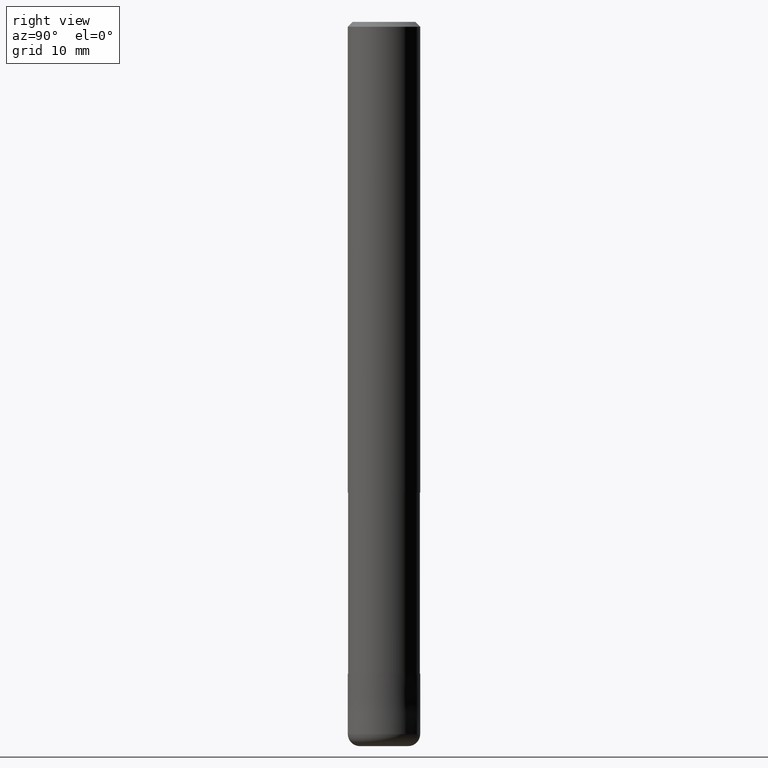
[diagram: clean part render]
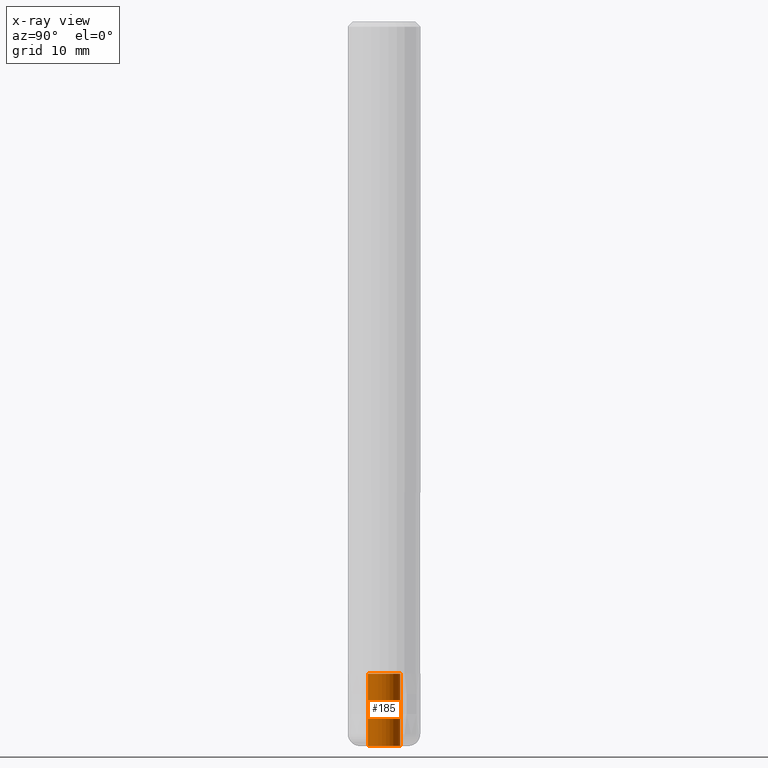
[diagram: x-ray — body ghosted, one internal face saturated and labeled with its STEP entity id]
A machine part, right view, then the same camera in x-ray: the body is ghosted and one INTERNAL B-rep face — a face not visible from any outside direction — is saturated and labeled: STEP entity #185.
In plain terms, the highlighted cylindrical surface (edge-blend (fillet) strip) has radius 1.35 mm, axis along (-0, -0, 1).
Its self-contained STEP definition (entity closure, byte-faithful):
#125=VERTEX_POINT('',#312);
#139=EDGE_CURVE('',#125,#223,#329,.T.);
#185=ADVANCED_FACE('',(#383),#384,.F.);
#193=EDGE_CURVE('',#229,#259,#394,.T.);
#215=EDGE_CURVE('',#259,#125,#418,.T.);
#223=VERTEX_POINT('',#426);
#229=VERTEX_POINT('',#432);
#241=EDGE_CURVE('',#229,#223,#446,.T.);
#259=VERTEX_POINT('',#467);
#312=CARTESIAN_POINT('',(1.65321857766021E-016,-1.35,-60.0));
#329=LINE('',#536,#537);
#383=FACE_OUTER_BOUND('',#608,.T.);
#384=CYLINDRICAL_SURFACE('',#609,1.35);
#394=LINE('',#621,#622);
#418=CIRCLE('',#655,1.35);
#426=CARTESIAN_POINT('',(1.65321857766021E-016,-1.35,-54.0));
#432=CARTESIAN_POINT('',(0.0,1.35,-54.0));
#446=CIRCLE('',#688,1.35);
#467=CARTESIAN_POINT('',(0.0,1.35,-60.0));
#536=CARTESIAN_POINT('',(1.65321857766021E-016,-1.35,-57.0));
#537=VECTOR('',#772,1.0);
#608=EDGE_LOOP('',(#845,#846,#847,#848));
#609=AXIS2_PLACEMENT_3D('',#849,#850,#851);
#621=CARTESIAN_POINT('',(-1.65321857766021E-016,1.35,-57.0));
#622=VECTOR('',#871,1.0);
#655=AXIS2_PLACEMENT_3D('',#902,#903,#904);
#688=AXIS2_PLACEMENT_3D('',#929,#930,#931);
#772=DIRECTION('',(0.0,-0.0,1.0));
#845=ORIENTED_EDGE('',*,*,#193,.T.);
#846=ORIENTED_EDGE('',*,*,#215,.T.);
#847=ORIENTED_EDGE('',*,*,#139,.T.);
#848=ORIENTED_EDGE('',*,*,#241,.F.);
#849=CARTESIAN_POINT('',(0.0,0.0,-57.0));
#850=DIRECTION('',(-0.0,-0.0,1.0));
#851=DIRECTION('',(0.0,1.0,0.0));
#871=DIRECTION('',(0.0,-0.0,-1.0));
#902=CARTESIAN_POINT('',(0.0,0.0,-60.0));
#903=DIRECTION('',(0.0,0.0,-1.0));
#904=DIRECTION('',(0.0,1.0,0.0));
#929=CARTESIAN_POINT('',(0.0,0.0,-54.0));
#930=DIRECTION('',(0.0,0.0,-1.0));
#931=DIRECTION('',(0.0,1.0,0.0));